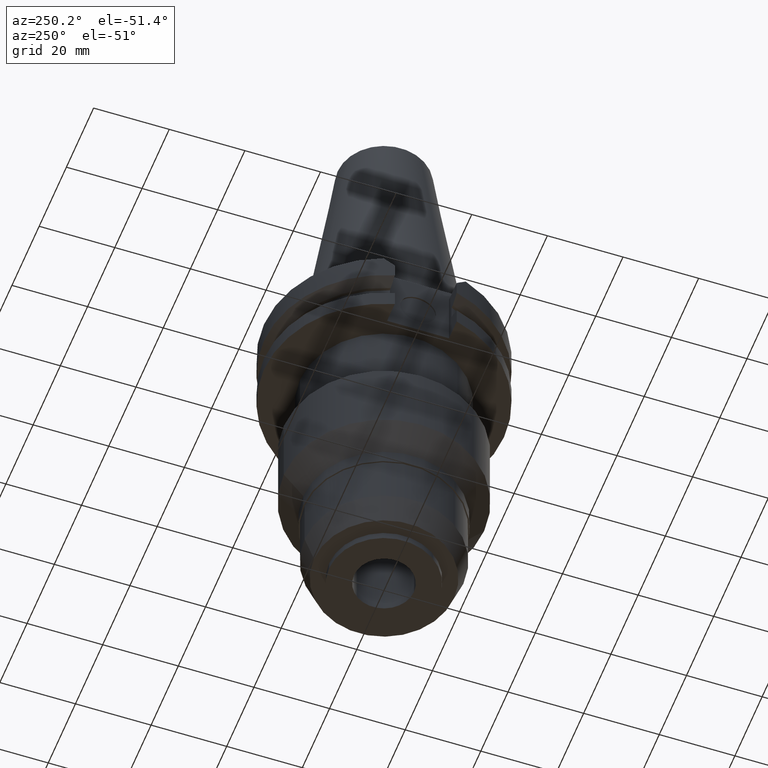
[diagram: clean part render]
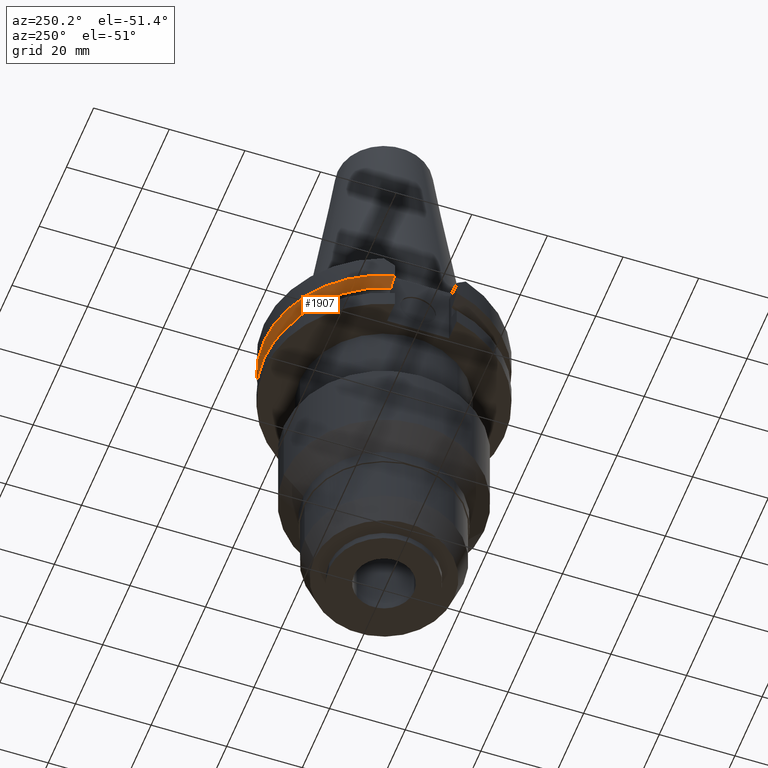
[diagram: same view with one face highlighted and labeled with its STEP entity id]
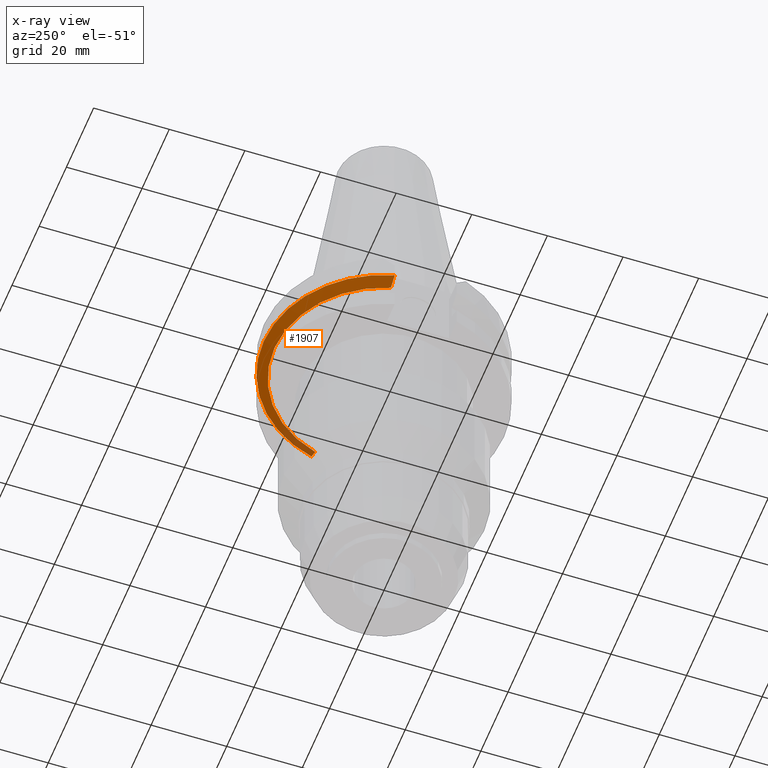
[diagram: x-ray of the same camera — body ghosted, the highlighted face saturated]
A machine part, auxiliary view. The second image highlights one B-rep face of the part: STEP entity #1907.
The next image is the same camera in x-ray: the body ghosted, the highlighted face saturated — about 9% of this face is hidden behind the body in this view.
In plain terms, the highlighted conical surface has half-angle 60 deg.
Its self-contained STEP definition (entity closure, byte-faithful):
#267=CARTESIAN_POINT('',(3.067550165946E1,8.189999874256E0,-7.601334354625E0));
#268=CARTESIAN_POINT('',(3.035472638245E1,8.189999874256E0,-7.780266432988E0));
#269=CARTESIAN_POINT('',(2.971302863261E1,8.189999973377E0,-8.137871219494E0));
#270=CARTESIAN_POINT('',(2.874990663993E1,8.190000281796E0,-8.673237290940E0));
#271=CARTESIAN_POINT('',(2.810748974248E1,8.189999360225E0,-9.029558666741E0));
#272=CARTESIAN_POINT('',(2.778617704692E1,8.189999360225E0,-9.207500000001E0));
#379=CARTESIAN_POINT('',(-2.778616453859E1,8.190000190914E0,-9.207500000001E0));
#380=CARTESIAN_POINT('',(-2.810749132283E1,8.190000190914E0,-9.029550869207E0));
#381=CARTESIAN_POINT('',(-2.874991655627E1,8.189999991762E0,-8.673260599046E0));
#382=CARTESIAN_POINT('',(-2.971304241024E1,8.189999742463E0,-8.137892855422E0));
#383=CARTESIAN_POINT('',(-3.035472199999E1,8.190000606412E0,-7.780262222162E0));
#384=CARTESIAN_POINT('',(-3.067550146399E1,8.190000606412E0,-7.601327811671E0));
#513=CARTESIAN_POINT('',(0.E0,1.121722380079E-14,-9.207500000003E0));
#514=DIRECTION('',(0.E0,0.E0,1.E0));
#515=DIRECTION('',(9.592008904640E-1,2.827253998727E-1,0.E0));
#516=AXIS2_PLACEMENT_3D('',#513,#514,#515);
#521=CARTESIAN_POINT('',(0.E0,1.121722380079E-14,-9.207500000003E0));
#522=DIRECTION('',(0.E0,0.E0,1.E0));
#523=DIRECTION('',(0.E0,1.E0,0.E0));
#524=AXIS2_PLACEMENT_3D('',#521,#522,#523);
#545=CARTESIAN_POINT('',(0.E0,1.121722380079E-14,-7.601333230926E0));
#546=DIRECTION('',(0.E0,0.E0,1.E0));
#547=DIRECTION('',(9.661575315241E-1,2.579527559055E-1,0.E0));
#548=AXIS2_PLACEMENT_3D('',#545,#546,#547);
#553=CARTESIAN_POINT('',(0.E0,1.121722380079E-14,-7.601333230926E0));
#554=DIRECTION('',(0.E0,0.E0,1.E0));
#555=DIRECTION('',(0.E0,1.E0,0.E0));
#556=AXIS2_PLACEMENT_3D('',#553,#554,#555);
#1480=CARTESIAN_POINT('',(-2.778616453859E1,8.190000190914E0,
-9.207500000001E0));
#1481=VERTEX_POINT('',#1480);
#1482=VERTEX_POINT('',#384);
#1504=CARTESIAN_POINT('',(2.778617704692E1,8.189999360225E0,-9.207500000001E0));
#1505=VERTEX_POINT('',#1504);
#1506=CARTESIAN_POINT('',(3.537899182731E-14,2.896803755053E1,
-9.207500000003E0));
#1507=VERTEX_POINT('',#1506);
#1510=VERTEX_POINT('',#267);
#1511=CARTESIAN_POINT('',(0.E0,3.175E1,-7.601333230926E0));
#1512=VERTEX_POINT('',#1511);
#1894=CARTESIAN_POINT('',(0.E0,1.121722380079E-14,-8.404416615464E0));
#1895=DIRECTION('',(0.E0,0.E0,1.E0));
#1896=DIRECTION('',(0.E0,1.E0,0.E0));
#1897=AXIS2_PLACEMENT_3D('',#1894,#1895,#1896);
#1898=CONICAL_SURFACE('',#1897,3.035901877527E1,6.E1);
#1899=ORIENTED_EDGE('',*,*,#1705,.F.);
#1900=ORIENTED_EDGE('',*,*,#1748,.T.);
#1901=ORIENTED_EDGE('',*,*,#1746,.T.);
#1902=ORIENTED_EDGE('',*,*,#1806,.F.);
#1903=ORIENTED_EDGE('',*,*,#1886,.F.);
#1904=ORIENTED_EDGE('',*,*,#1884,.F.);
#1905=EDGE_LOOP('',(#1899,#1900,#1901,#1902,#1903,#1904));
#1906=FACE_OUTER_BOUND('',#1905,.F.);
#273=B_SPLINE_CURVE_WITH_KNOTS('',3,(#267,#268,#269,#270,#271,#272),
.UNSPECIFIED.,.F.,.F.,(4,1,1,4),(0.E0,3.333333333333E-1,6.666666666667E-1,1.E0),
.UNSPECIFIED.);
#385=B_SPLINE_CURVE_WITH_KNOTS('',3,(#379,#380,#381,#382,#383,#384),
.UNSPECIFIED.,.F.,.F.,(4,1,1,4),(0.E0,3.333333333333E-1,6.666666666667E-1,1.E0),
.UNSPECIFIED.);
#517=CIRCLE('',#516,2.896803755053E1);
#525=CIRCLE('',#524,2.896803755053E1);
#549=CIRCLE('',#548,3.175E1);
#557=CIRCLE('',#556,3.175E1);
#1705=EDGE_CURVE('',#1510,#1505,#273,.T.);
#1746=EDGE_CURVE('',#1512,#1482,#557,.T.);
#1748=EDGE_CURVE('',#1510,#1512,#549,.T.);
#1806=EDGE_CURVE('',#1481,#1482,#385,.T.);
#1884=EDGE_CURVE('',#1505,#1507,#517,.T.);
#1886=EDGE_CURVE('',#1507,#1481,#525,.T.);
#1907=ADVANCED_FACE('',(#1906),#1898,.T.);